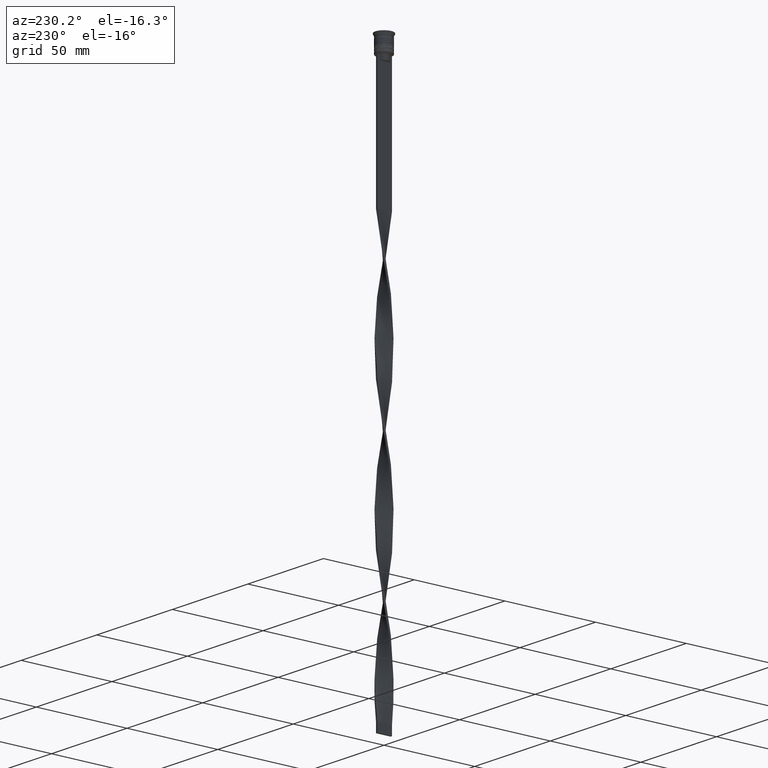
[diagram: clean part render]
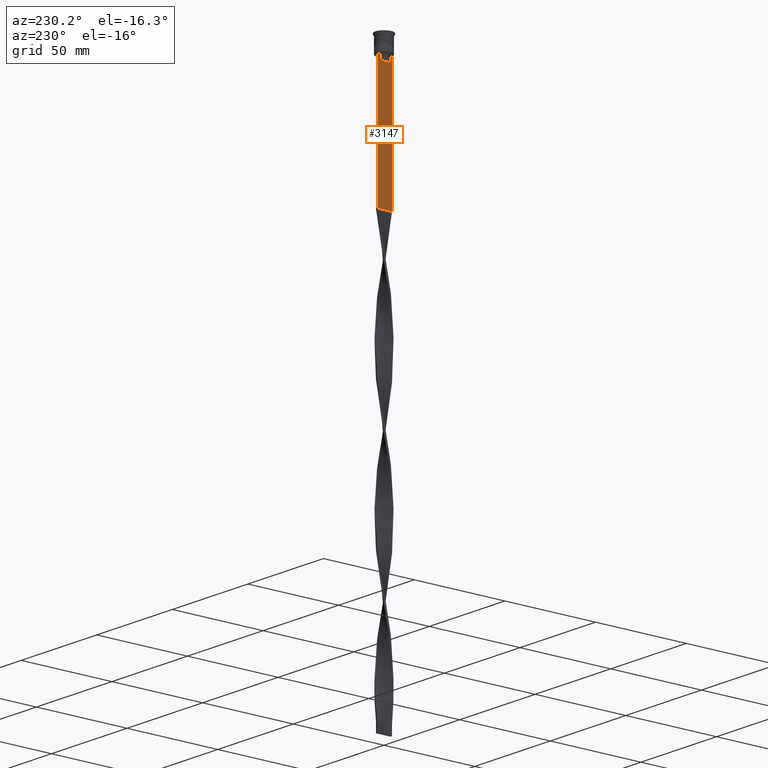
[diagram: same view with one face highlighted and labeled with its STEP entity id]
A machine part, auxiliary view. The second image highlights one B-rep face of the part: STEP entity #3147.
In plain terms, the highlighted planar face has unit normal (-1, 0, 0).
Its self-contained STEP definition (entity closure, byte-faithful):
#16 = VECTOR ( 'NONE', #1666, 1000.000000000000000 ) ;
#161 = LINE ( 'NONE', #3192, #16 ) ;
#184 = VERTEX_POINT ( 'NONE', #2606 ) ;
#223 = VERTEX_POINT ( 'NONE', #1146 ) ;
#262 = CARTESIAN_POINT ( 'NONE',  ( -0.5000000000000000000, -4.000000000000000000, -9.500000000000000000 ) ) ;
#272 = VECTOR ( 'NONE', #458, 1000.000000000000000 ) ;
#275 = VECTOR ( 'NONE', #2406, 1000.000000000000000 ) ;
#282 = VERTEX_POINT ( 'NONE', #633 ) ;
#373 = ORIENTED_EDGE ( 'NONE', *, *, #3401, .F. ) ;
#397 = CARTESIAN_POINT ( 'NONE',  ( -0.5000000000000000000, -4.000000000000000000, -1.437742251701450202 ) ) ;
#404 = EDGE_CURVE ( 'NONE', #1416, #1217, #3451, .T. ) ;
#458 = DIRECTION ( 'NONE',  ( 0.000000000000000000, -1.000000000000000000, 0.000000000000000000 ) ) ;
#459 = AXIS2_PLACEMENT_3D ( 'NONE', #397, #818, #3319 ) ;
#468 = B_SPLINE_CURVE_WITH_KNOTS ( 'NONE', 3,
 ( #521, #2334, #3580, #1129 ),
 .UNSPECIFIED., .F., .F.,
 ( 4, 4 ),
 ( 0.005378271293598281544, 0.006090816219556000749 ),
 .UNSPECIFIED. ) ;
#521 = CARTESIAN_POINT ( 'NONE',  ( -0.5000000000000000000, 3.110064308016796897, -9.500000000000000000 ) ) ;
#571 = DIRECTION ( 'NONE',  ( 0.000000000000000000, 0.000000000000000000, -1.000000000000000000 ) ) ;
#577 = VECTOR ( 'NONE', #897, 1000.000000000000000 ) ;
#616 = DIRECTION ( 'NONE',  ( 0.000000000000000000, 1.000000000000000000, 0.000000000000000000 ) ) ;
#633 = CARTESIAN_POINT ( 'NONE',  ( -0.5000000000000000000, -2.602402735934616906, -12.50000000000000000 ) ) ;
#671 = CARTESIAN_POINT ( 'NONE',  ( -0.5000000000000000000, -2.771864055700302476, -9.833582414266677674 ) ) ;
#688 = FACE_OUTER_BOUND ( 'NONE', #2664, .T. ) ;
#719 = EDGE_CURVE ( 'NONE', #3585, #1217, #161, .T. ) ;
#734 = LINE ( 'NONE', #2271, #272 ) ;
#818 = DIRECTION ( 'NONE',  ( -1.000000000000000000, 0.000000000000000000, 0.000000000000000000 ) ) ;
#874 = CARTESIAN_POINT ( 'NONE',  ( -0.5000000000000000000, 4.000000000000000000, -78.00000000000000000 ) ) ;
#895 = CARTESIAN_POINT ( 'NONE',  ( -0.5000000000000000000, 2.602402735934616906, -12.50000000000000000 ) ) ;
#897 = DIRECTION ( 'NONE',  ( -0.000000000000000000, -0.000000000000000000, 1.000000000000000000 ) ) ;
#922 = CARTESIAN_POINT ( 'NONE',  ( -0.5000000000000000000, -2.602402735934616906, 0.000000000000000000 ) ) ;
#959 = VERTEX_POINT ( 'NONE', #895 ) ;
#962 = LINE ( 'NONE', #922, #577 ) ;
#1125 = VERTEX_POINT ( 'NONE', #2541 ) ;
#1129 = CARTESIAN_POINT ( 'NONE',  ( -0.5000000000000000000, 2.602402735934616906, -10.00000000000000178 ) ) ;
#1146 = CARTESIAN_POINT ( 'NONE',  ( -0.5000000000000000000, -3.110064308016796897, -9.500000000000000000 ) ) ;
#1217 = VERTEX_POINT ( 'NONE', #874 ) ;
#1219 = LINE ( 'NONE', #1862, #275 ) ;
#1232 = CARTESIAN_POINT ( 'NONE',  ( -0.5000000000000000000, -4.000000000000000000, -9.500000000000000000 ) ) ;
#1368 = CARTESIAN_POINT ( 'NONE',  ( -0.5000000000000000000, -2.941045828809988549, -9.666875663357577864 ) ) ;
#1372 = EDGE_CURVE ( 'NONE', #3585, #1125, #2433, .T. ) ;
#1378 = EDGE_CURVE ( 'NONE', #184, #959, #1809, .T. ) ;
#1416 = VERTEX_POINT ( 'NONE', #3507 ) ;
#1450 = ORIENTED_EDGE ( 'NONE', *, *, #2825, .F. ) ;
#1469 = CARTESIAN_POINT ( 'NONE',  ( -0.5000000000000000000, -2.602402735934616906, -10.00000000000000178 ) ) ;
#1545 = VERTEX_POINT ( 'NONE', #3270 ) ;
#1610 = CARTESIAN_POINT ( 'NONE',  ( -0.5000000000000000000, -4.000000000000000000, -78.00000000000000000 ) ) ;
#1666 = DIRECTION ( 'NONE',  ( 0.000000000000000000, 0.000000000000000000, -1.000000000000000000 ) ) ;
#1785 = EDGE_CURVE ( 'NONE', #282, #3306, #962, .T. ) ;
#1809 = LINE ( 'NONE', #2414, #2506 ) ;
#1822 = ORIENTED_EDGE ( 'NONE', *, *, #1785, .F. ) ;
#1862 = CARTESIAN_POINT ( 'NONE',  ( -0.5000000000000000000, -4.000000000000000000, -1.437742251701450202 ) ) ;
#1893 = ORIENTED_EDGE ( 'NONE', *, *, #2498, .F. ) ;
#1922 = PLANE ( 'NONE',  #459 ) ;
#1930 = VECTOR ( 'NONE', #616, 1000.000000000000000 ) ;
#1962 = CARTESIAN_POINT ( 'NONE',  ( -0.5000000000000000000, -2.602402735934616906, -10.00000000000000178 ) ) ;
#2271 = CARTESIAN_POINT ( 'NONE',  ( -0.5000000000000000000, 2.649999999999995914, -12.50000000000000000 ) ) ;
#2334 = CARTESIAN_POINT ( 'NONE',  ( -0.5000000000000000000, 2.941047749529104749, -9.666873766989334982 ) ) ;
#2406 = DIRECTION ( 'NONE',  ( 0.000000000000000000, 0.000000000000000000, -1.000000000000000000 ) ) ;
#2414 = CARTESIAN_POINT ( 'NONE',  ( -0.5000000000000000000, 2.602402735934616906, 0.000000000000000000 ) ) ;
#2433 = LINE ( 'NONE', #262, #3094 ) ;
#2476 = EDGE_CURVE ( 'NONE', #1125, #184, #468, .T. ) ;
#2498 = EDGE_CURVE ( 'NONE', #223, #1545, #3091, .T. ) ;
#2506 = VECTOR ( 'NONE', #571, 1000.000000000000000 ) ;
#2541 = CARTESIAN_POINT ( 'NONE',  ( -0.5000000000000000000, 3.110064308016796897, -9.500000000000000000 ) ) ;
#2590 = CARTESIAN_POINT ( 'NONE',  ( -0.5000000000000000000, -3.110064308016796897, -9.500000000000000000 ) ) ;
#2606 = CARTESIAN_POINT ( 'NONE',  ( -0.5000000000000000000, 2.602402735934616906, -10.00000000000000178 ) ) ;
#2664 = EDGE_LOOP ( 'NONE', ( #3457, #3767, #3921, #3374, #373, #1893, #3992, #1822, #1450, #3153 ) ) ;
#2825 = EDGE_CURVE ( 'NONE', #959, #282, #734, .T. ) ;
#2894 = CARTESIAN_POINT ( 'NONE',  ( -0.5000000000000000000, 4.000000000000000000, -9.500000000000000000 ) ) ;
#3080 = EDGE_CURVE ( 'NONE', #3306, #223, #3355, .T. ) ;
#3091 = LINE ( 'NONE', #1232, #3618 ) ;
#3094 = VECTOR ( 'NONE', #3415, 1000.000000000000000 ) ;
#3147 = ADVANCED_FACE ( 'NONE', ( #688 ), #1922, .T. ) ;
#3153 = ORIENTED_EDGE ( 'NONE', *, *, #1378, .F. ) ;
#3192 = CARTESIAN_POINT ( 'NONE',  ( -0.5000000000000000000, 4.000000000000000000, -1.437742251701450202 ) ) ;
#3270 = CARTESIAN_POINT ( 'NONE',  ( -0.5000000000000000000, -4.000000000000000000, -9.500000000000000000 ) ) ;
#3306 = VERTEX_POINT ( 'NONE', #1469 ) ;
#3319 = DIRECTION ( 'NONE',  ( 0.000000000000000000, 0.000000000000000000, 1.000000000000000000 ) ) ;
#3355 = B_SPLINE_CURVE_WITH_KNOTS ( 'NONE', 3,
 ( #1962, #671, #1368, #2590 ),
 .UNSPECIFIED., .F., .F.,
 ( 4, 4 ),
 ( 0.01295151922336848505, 0.01367164596165163643 ),
 .UNSPECIFIED. ) ;
#3374 = ORIENTED_EDGE ( 'NONE', *, *, #404, .F. ) ;
#3401 = EDGE_CURVE ( 'NONE', #1545, #1416, #1219, .T. ) ;
#3415 = DIRECTION ( 'NONE',  ( 0.000000000000000000, -1.000000000000000000, 0.000000000000000000 ) ) ;
#3451 = LINE ( 'NONE', #1610, #1930 ) ;
#3457 = ORIENTED_EDGE ( 'NONE', *, *, #2476, .F. ) ;
#3507 = CARTESIAN_POINT ( 'NONE',  ( -0.5000000000000000000, -4.000000000000000000, -78.00000000000000000 ) ) ;
#3580 = CARTESIAN_POINT ( 'NONE',  ( -0.5000000000000000000, 2.771866350855961336, -9.833580160334840059 ) ) ;
#3585 = VERTEX_POINT ( 'NONE', #2894 ) ;
#3618 = VECTOR ( 'NONE', #3718, 1000.000000000000000 ) ;
#3718 = DIRECTION ( 'NONE',  ( 0.000000000000000000, -1.000000000000000000, 0.000000000000000000 ) ) ;
#3767 = ORIENTED_EDGE ( 'NONE', *, *, #1372, .F. ) ;
#3921 = ORIENTED_EDGE ( 'NONE', *, *, #719, .T. ) ;
#3992 = ORIENTED_EDGE ( 'NONE', *, *, #3080, .F. ) ;